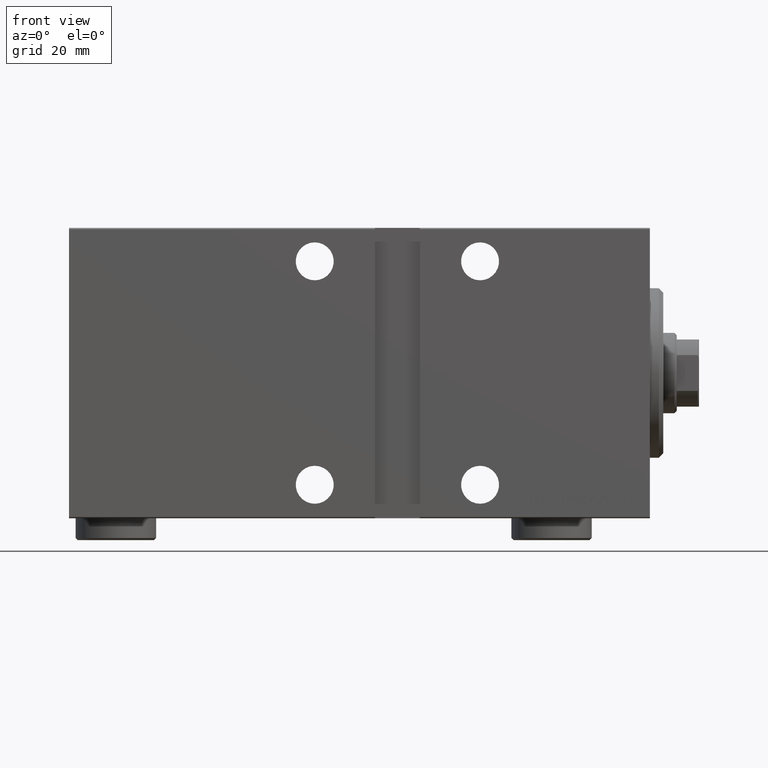
[diagram: clean part render]
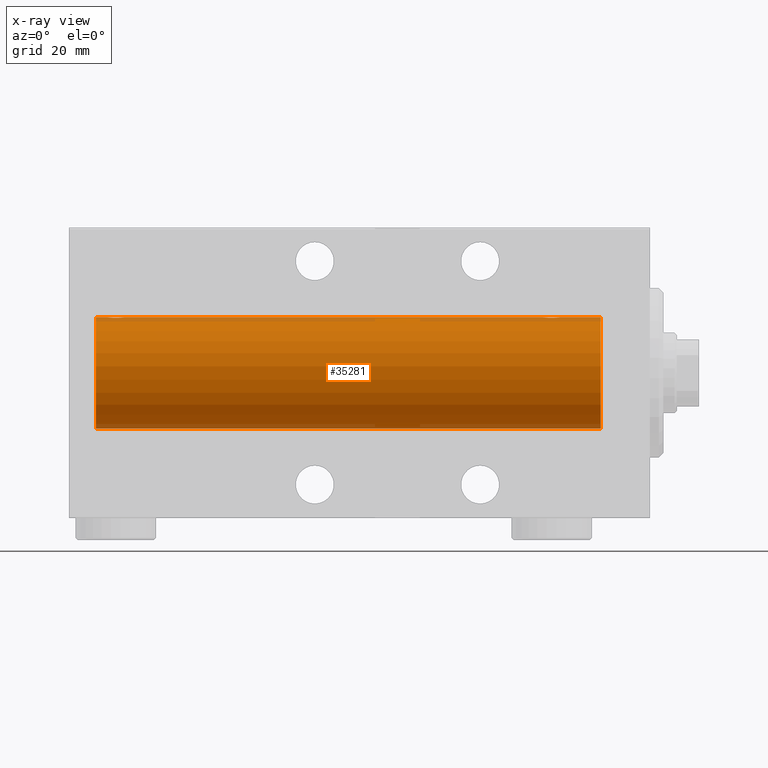
[diagram: x-ray — body ghosted, one internal face saturated and labeled with its STEP entity id]
A machine part, front view, then the same camera in x-ray: the body is ghosted and one INTERNAL B-rep face — a face not visible from any outside direction — is saturated and labeled: STEP entity #35281.
In plain terms, the highlighted cylindrical surface (partial cylindrical patch) has radius 12.5 mm, axis along (1, 0, -0).
Its self-contained STEP definition (entity closure, byte-faithful):
#109 = CARTESIAN_POINT ( 'NONE',  ( 21.87007370639734205, 2.000049200055400433, 12.33895470450622867 ) ) ;
#323 = CARTESIAN_POINT ( 'NONE',  ( 23.98698791483651149, 0.2624928479599948905, 12.49789934882883458 ) ) ;
#325 = CARTESIAN_POINT ( 'NONE',  ( 121.0903668000940456, 1.219754986802274344, 12.44082361696003680 ) ) ;
#582 = DIRECTION ( 'NONE',  ( -1.000000000000000000, -0.000000000000000000, -0.000000000000000000 ) ) ;
#642 = EDGE_CURVE ( 'NONE', #37111, #11546, #1557, .T. ) ;
#1314 = CARTESIAN_POINT ( 'NONE',  ( 124.0000000000000000, 1.530808498934191521E-15, -12.50000000000000000 ) ) ;
#1557 = LINE ( 'NONE', #24881, #7468 ) ;
#2788 = CARTESIAN_POINT ( 'NONE',  ( 21.11343686466983982, 1.797558627508994533, 12.37018026341338484 ) ) ;
#2882 = ORIENTED_EDGE ( 'NONE', *, *, #38046, .T. ) ;
#3000 = CARTESIAN_POINT ( 'NONE',  ( 20.01309615233744665, 0.2633501011236107914, 12.49788564268284041 ) ) ;
#3219 = CARTESIAN_POINT ( 'NONE',  ( 117.7652925760239100, 1.003863686549167467, 12.46009879577771429 ) ) ;
#3665 = CARTESIAN_POINT ( 'NONE',  ( 121.3974772970180709, 0.6455696738844912685, 12.48390768591463384 ) ) ;
#3730 = DIRECTION ( 'NONE',  ( 0.000000000000000000, 0.000000000000000000, 1.000000000000000000 ) ) ;
#4794 = CARTESIAN_POINT ( 'NONE',  ( 117.5000000000000142, -7.266355570171783942E-23, 12.50000000000000000 ) ) ;
#4812 = VERTEX_POINT ( 'NONE', #35210 ) ;
#6068 = CIRCLE ( 'NONE', #40045, 12.50000000000000000 ) ;
#6105 = CARTESIAN_POINT ( 'NONE',  ( 117.6022696860634227, 0.6448065707252969014, 12.48394649977301718 ) ) ;
#6181 = DIRECTION ( 'NONE',  ( 0.000000000000000000, 0.000000000000000000, 1.000000000000000000 ) ) ;
#6284 = VERTEX_POINT ( 'NONE', #8798 ) ;
#6317 = CARTESIAN_POINT ( 'NONE',  ( 20.10226968606341202, 0.6448065707252997880, 12.48394649977302073 ) ) ;
#6417 = EDGE_CURVE ( 'NONE', #11546, #6284, #33982, .T. ) ;
#6534 = CARTESIAN_POINT ( 'NONE',  ( 22.52563587170489612, 1.947190906025044521, 12.34781876294798586 ) ) ;
#6537 = CARTESIAN_POINT ( 'NONE',  ( 121.2969921162862050, 0.8876934327478118725, 12.46903010196600015 ) ) ;
#6765 = CARTESIAN_POINT ( 'NONE',  ( 121.2355325543813649, 1.002494658017152096, 12.46021263690097136 ) ) ;
#6995 = CARTESIAN_POINT ( 'NONE',  ( 117.9100859131937398, 1.220297236145715170, 12.44076681548080465 ) ) ;
#7218 = CARTESIAN_POINT ( 'NONE',  ( 22.26211806331625098, 1.999901172190677201, 12.33897869807161563 ) ) ;
#7468 = VECTOR ( 'NONE', #15109, 1000.000000000000000 ) ;
#7673 = ORIENTED_EDGE ( 'NONE', *, *, #642, .T. ) ;
#7875 = CARTESIAN_POINT ( 'NONE',  ( 19.99999999999999645, -7.265724481447607133E-23, 12.50000000000000000 ) ) ;
#8798 = CARTESIAN_POINT ( 'NONE',  ( 19.99999999999999645, -7.265724481447607133E-23, 12.50000000000000000 ) ) ;
#9888 = CARTESIAN_POINT ( 'NONE',  ( 118.6134368646698647, 1.797558627508991425, 12.37018026341338484 ) ) ;
#10327 = CARTESIAN_POINT ( 'NONE',  ( 119.2373053754540138, 1.986986967296530349, 12.34109209020652820 ) ) ;
#10627 = DIRECTION ( 'NONE',  ( -1.000000000000000000, -0.000000000000000000, -0.000000000000000000 ) ) ;
#11113 = CIRCLE ( 'NONE', #33097, 12.50000000000000000 ) ;
#11546 = VERTEX_POINT ( 'NONE', #11650 ) ;
#11650 = CARTESIAN_POINT ( 'NONE',  ( 24.00000000000000000, -2.019790789754703983E-15, 12.50000000000000000 ) ) ;
#12106 = EDGE_LOOP ( 'NONE', ( #35944, #24345, #36315, #2882, #7673, #31986, #34883, #31887 ) ) ;
#12956 = VERTEX_POINT ( 'NONE', #15984 ) ;
#13003 = CARTESIAN_POINT ( 'NONE',  ( 20.20257508083844300, 0.8868029758979374400, 12.46909283808506252 ) ) ;
#13004 = CARTESIAN_POINT ( 'NONE',  ( 119.7621180633162226, 1.999901172190670762, 12.33897869807161207 ) ) ;
#13444 = CARTESIAN_POINT ( 'NONE',  ( 20.49266449635678100, 1.321095788880536137, 12.43034574091278266 ) ) ;
#13883 = CARTESIAN_POINT ( 'NONE',  ( 23.89747729701804957, 0.6455696738844942661, 12.48390768591463207 ) ) ;
#13886 = CARTESIAN_POINT ( 'NONE',  ( 118.8558476622971085, 1.897967064543083060, 12.35517291625592051 ) ) ;
#14005 = B_SPLINE_CURVE_WITH_KNOTS ( 'NONE', 3,
 ( #36989, #40773, #40112, #30766, #3665, #6537, #6765, #325, #26548, #33648, #33874, #43891, #13004, #23875, #10327, #16763, #13886, #9888, #23429, #23209, #43451, #27433, #6995, #3219, #33216, #6105, #23646, #41000, #33434, #16540 ),
 .UNSPECIFIED., .F., .F.,
 ( 4, 2, 2, 2, 2, 2, 2, 2, 2, 2, 2, 2, 2, 2, 4 ),
 ( 3.150899254398443723E-18, 0.0003914362731607623990, 0.0007828725463215216538, 0.001174308819482281071, 0.001565745092643040272, 0.002348617638964557372, 0.003131490185286075340, 0.003522926458446834757, 0.003914362731607594174, 0.004305799004768353158, 0.004697235277929112142, 0.005088671551089871993, 0.005480107824250631844, 0.005871544097411390828, 0.006262980370572149812 ),
 .UNSPECIFIED. ) ;
#14739 = FACE_OUTER_BOUND ( 'NONE', #12106, .T. ) ;
#15109 = DIRECTION ( 'NONE',  ( -1.000000000000000000, -0.000000000000000000, -0.000000000000000000 ) ) ;
#15448 = DIRECTION ( 'NONE',  ( -1.000000000000000000, -0.000000000000000000, -0.000000000000000000 ) ) ;
#15978 = CARTESIAN_POINT ( 'NONE',  ( 124.0000000000000000, 0.000000000000000000, 0.000000000000000000 ) ) ;
#15984 = CARTESIAN_POINT ( 'NONE',  ( 124.0000000000000000, 0.000000000000000000, 12.50000000000000000 ) ) ;
#16328 = CARTESIAN_POINT ( 'NONE',  ( 20.99664185700817853, 1.734998657226762830, 12.37922086519035680 ) ) ;
#16451 = CARTESIAN_POINT ( 'NONE',  ( 121.5000000000000142, 3.243081337463046590E-15, 12.50000000000000000 ) ) ;
#16540 = CARTESIAN_POINT ( 'NONE',  ( 117.5000000000000142, -7.266355570171783942E-23, 12.50000000000000000 ) ) ;
#16763 = CARTESIAN_POINT ( 'NONE',  ( 118.9806264914844292, 1.935814255713564469, 12.34922241902463291 ) ) ;
#16986 = CARTESIAN_POINT ( 'NONE',  ( 23.99999999999999645, 0.1323736289504348906, 12.50000000000000000 ) ) ;
#17204 = CARTESIAN_POINT ( 'NONE',  ( 24.00000000000000000, -2.019790789754703983E-15, 12.50000000000000000 ) ) ;
#18276 = CYLINDRICAL_SURFACE ( 'NONE', #43990, 12.50000000000000000 ) ;
#19501 = VERTEX_POINT ( 'NONE', #16451 ) ;
#19729 = EDGE_CURVE ( 'NONE', #12956, #30451, #6068, .T. ) ;
#23207 = CARTESIAN_POINT ( 'NONE',  ( 20.06438225478150272, 0.5201193324741336665, 12.48983485452574982 ) ) ;
#23209 = CARTESIAN_POINT ( 'NONE',  ( 118.2801920940542004, 1.590288205413970202, 12.39864157855464555 ) ) ;
#23429 = CARTESIAN_POINT ( 'NONE',  ( 118.4966418570081998, 1.734998657226759944, 12.37922086519035680 ) ) ;
#23463 = CARTESIAN_POINT ( 'NONE',  ( 124.0000000000000000, 0.000000000000000000, 12.50000000000000000 ) ) ;
#23644 = CARTESIAN_POINT ( 'NONE',  ( 21.73730537545401731, 1.986986967296538120, 12.34109209020652642 ) ) ;
#23646 = CARTESIAN_POINT ( 'NONE',  ( 117.5643822547815347, 0.5201193324741313351, 12.48983485452574982 ) ) ;
#23875 = CARTESIAN_POINT ( 'NONE',  ( 119.3700737063973634, 2.000049200055392440, 12.33895470450622867 ) ) ;
#24097 = CARTESIAN_POINT ( 'NONE',  ( 23.50601633672791380, 1.322451657002079450, 12.43019346654085133 ) ) ;
#24345 = ORIENTED_EDGE ( 'NONE', *, *, #19729, .F. ) ;
#24508 = DIRECTION ( 'NONE',  ( -1.000000000000000000, -0.000000000000000000, -0.000000000000000000 ) ) ;
#24525 = CARTESIAN_POINT ( 'NONE',  ( 20.00000000000000000, 0.1306394121199368485, 12.50000000000000178 ) ) ;
#24598 = DIRECTION ( 'NONE',  ( -1.000000000000000000, 0.000000000000000000, 0.000000000000000000 ) ) ;
#24881 = CARTESIAN_POINT ( 'NONE',  ( 124.0000000000000000, 0.000000000000000000, 12.50000000000000000 ) ) ;
#25628 = EDGE_CURVE ( 'NONE', #12956, #19501, #27466, .T. ) ;
#25887 = EDGE_CURVE ( 'NONE', #6284, #42963, #42572, .T. ) ;
#26315 = EDGE_CURVE ( 'NONE', #42963, #4812, #11113, .T. ) ;
#26548 = CARTESIAN_POINT ( 'NONE',  ( 121.0060163367279529, 1.322451657002065906, 12.43019346654085311 ) ) ;
#26565 = CARTESIAN_POINT ( 'NONE',  ( 10.99999999999999645, 0.000000000000000000, 12.50000000000000000 ) ) ;
#27432 = CARTESIAN_POINT ( 'NONE',  ( 23.73553255438137555, 1.002494658017160090, 12.46021263690097491 ) ) ;
#27433 = CARTESIAN_POINT ( 'NONE',  ( 117.9926644963568236, 1.321095788880531696, 12.43034574091278266 ) ) ;
#27466 = LINE ( 'NONE', #23463, #33823 ) ;
#28163 = CARTESIAN_POINT ( 'NONE',  ( 124.0000000000000000, 1.530808498934191521E-15, -12.50000000000000000 ) ) ;
#29883 = CARTESIAN_POINT ( 'NONE',  ( 20.78019209405420042, 1.590288205413970646, 12.39864157855464910 ) ) ;
#30451 = VERTEX_POINT ( 'NONE', #1314 ) ;
#30547 = CARTESIAN_POINT ( 'NONE',  ( 23.79699211628617661, 0.8876934327478163134, 12.46903010196599837 ) ) ;
#30557 = VECTOR ( 'NONE', #10627, 1000.000000000000000 ) ;
#30766 = CARTESIAN_POINT ( 'NONE',  ( 121.4360435177736406, 0.5184196815546076031, 12.48990118705761532 ) ) ;
#31621 = DIRECTION ( 'NONE',  ( 0.000000000000000000, 0.000000000000000000, 1.000000000000000000 ) ) ;
#31887 = ORIENTED_EDGE ( 'NONE', *, *, #26315, .T. ) ;
#31986 = ORIENTED_EDGE ( 'NONE', *, *, #6417, .T. ) ;
#33097 = AXIS2_PLACEMENT_3D ( 'NONE', #37946, #24598, #3730 ) ;
#33215 = CARTESIAN_POINT ( 'NONE',  ( 21.35584766229707654, 1.897967064543088389, 12.35517291625592406 ) ) ;
#33216 = CARTESIAN_POINT ( 'NONE',  ( 117.7025750808384714, 0.8868029758979328880, 12.46909283808506430 ) ) ;
#33431 = CARTESIAN_POINT ( 'NONE',  ( 20.26529257602388867, 1.003863686549170353, 12.46009879577771429 ) ) ;
#33434 = CARTESIAN_POINT ( 'NONE',  ( 117.5000000000000142, 0.1306394121199357938, 12.50000000000000000 ) ) ;
#33646 = CARTESIAN_POINT ( 'NONE',  ( 23.00683120447498808, 1.747608771958142793, 12.37764291807175709 ) ) ;
#33648 = CARTESIAN_POINT ( 'NONE',  ( 120.7296649387315171, 1.598680238462358183, 12.39873273758732353 ) ) ;
#33823 = VECTOR ( 'NONE', #582, 1000.000000000000000 ) ;
#33874 = CARTESIAN_POINT ( 'NONE',  ( 120.5068312044750058, 1.747608771958138130, 12.37764291807175887 ) ) ;
#33982 = B_SPLINE_CURVE_WITH_KNOTS ( 'NONE', 3,
 ( #17204, #16986, #323, #36988, #13883, #30547, #27432, #40999, #24097, #37663, #33646, #6534, #7218, #109, #23644, #37206, #33215, #2788, #16328, #29883, #43890, #13444, #43450, #33431, #13003, #6317, #23207, #3000, #24525, #7875 ),
 .UNSPECIFIED., .F., .F.,
 ( 4, 2, 2, 2, 2, 2, 2, 2, 2, 2, 2, 2, 2, 2, 4 ),
 ( 3.101773669235365923E-18, 0.0003914362731607605559, 0.0007828725463215181844, 0.001174308819482275650, 0.001565745092643033550, 0.002348617638964548265, 0.003131490185286063196, 0.003522926458446825216, 0.003914362731607588103, 0.004305799004768350556, 0.004697235277929112142, 0.005088671551089875462, 0.005480107824250637048, 0.005871544097411400369, 0.006262980370572162822 ),
 .UNSPECIFIED. ) ;
#34883 = ORIENTED_EDGE ( 'NONE', *, *, #25887, .T. ) ;
#35051 = LINE ( 'NONE', #28163, #30557 ) ;
#35210 = CARTESIAN_POINT ( 'NONE',  ( 10.99999999999999645, 1.530808498934191521E-15, -12.50000000000000000 ) ) ;
#35281 = ADVANCED_FACE ( 'NONE', ( #14739 ), #18276, .F. ) ;
#35613 = CARTESIAN_POINT ( 'NONE',  ( 124.0000000000000000, 0.000000000000000000, 0.000000000000000000 ) ) ;
#35944 = ORIENTED_EDGE ( 'NONE', *, *, #41759, .F. ) ;
#36315 = ORIENTED_EDGE ( 'NONE', *, *, #25628, .T. ) ;
#36988 = CARTESIAN_POINT ( 'NONE',  ( 23.93604351777362993, 0.5184196815546091575, 12.48990118705761709 ) ) ;
#36989 = CARTESIAN_POINT ( 'NONE',  ( 121.5000000000000142, 3.243081337463046590E-15, 12.50000000000000000 ) ) ;
#37068 = DIRECTION ( 'NONE',  ( -1.000000000000000000, 0.000000000000000000, 0.000000000000000000 ) ) ;
#37111 = VERTEX_POINT ( 'NONE', #4794 ) ;
#37206 = CARTESIAN_POINT ( 'NONE',  ( 21.48062649148445047, 1.935814255713572019, 12.34922241902463469 ) ) ;
#37663 = CARTESIAN_POINT ( 'NONE',  ( 23.22966493873148863, 1.598680238462371284, 12.39873273758732175 ) ) ;
#37946 = CARTESIAN_POINT ( 'NONE',  ( 10.99999999999999645, 0.000000000000000000, 0.000000000000000000 ) ) ;
#38046 = EDGE_CURVE ( 'NONE', #19501, #37111, #14005, .T. ) ;
#40045 = AXIS2_PLACEMENT_3D ( 'NONE', #15978, #37068, #6181 ) ;
#40112 = CARTESIAN_POINT ( 'NONE',  ( 121.4869879148365044, 0.2624928479599939468, 12.49789934882883458 ) ) ;
#40773 = CARTESIAN_POINT ( 'NONE',  ( 121.5000000000000142, 0.1323736289504353070, 12.50000000000000000 ) ) ;
#40999 = CARTESIAN_POINT ( 'NONE',  ( 23.59036680009405629, 1.219754986802283003, 12.44082361696003858 ) ) ;
#41000 = CARTESIAN_POINT ( 'NONE',  ( 117.5130961523374538, 0.2633501011236107914, 12.49788564268283686 ) ) ;
#41759 = EDGE_CURVE ( 'NONE', #30451, #4812, #35051, .T. ) ;
#42572 = LINE ( 'NONE', #43007, #43047 ) ;
#42963 = VERTEX_POINT ( 'NONE', #26565 ) ;
#43007 = CARTESIAN_POINT ( 'NONE',  ( 124.0000000000000000, 0.000000000000000000, 12.50000000000000000 ) ) ;
#43047 = VECTOR ( 'NONE', #15448, 1000.000000000000000 ) ;
#43450 = CARTESIAN_POINT ( 'NONE',  ( 20.41008591319372201, 1.220297236145719610, 12.44076681548080465 ) ) ;
#43451 = CARTESIAN_POINT ( 'NONE',  ( 118.1789716649930284, 1.507394620545633446, 12.40913174964213539 ) ) ;
#43890 = CARTESIAN_POINT ( 'NONE',  ( 20.67897166499301775, 1.507394620545638997, 12.40913174964213717 ) ) ;
#43891 = CARTESIAN_POINT ( 'NONE',  ( 120.0256358717048641, 1.947190906025038748, 12.34781876294798764 ) ) ;
#43990 = AXIS2_PLACEMENT_3D ( 'NONE', #35613, #24508, #31621 ) ;